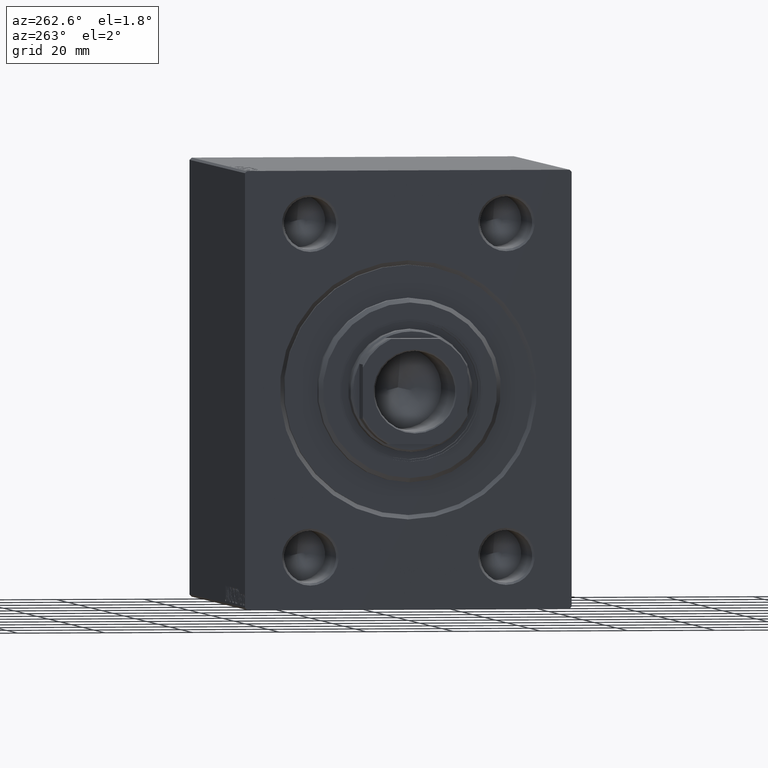
[diagram: clean part render]
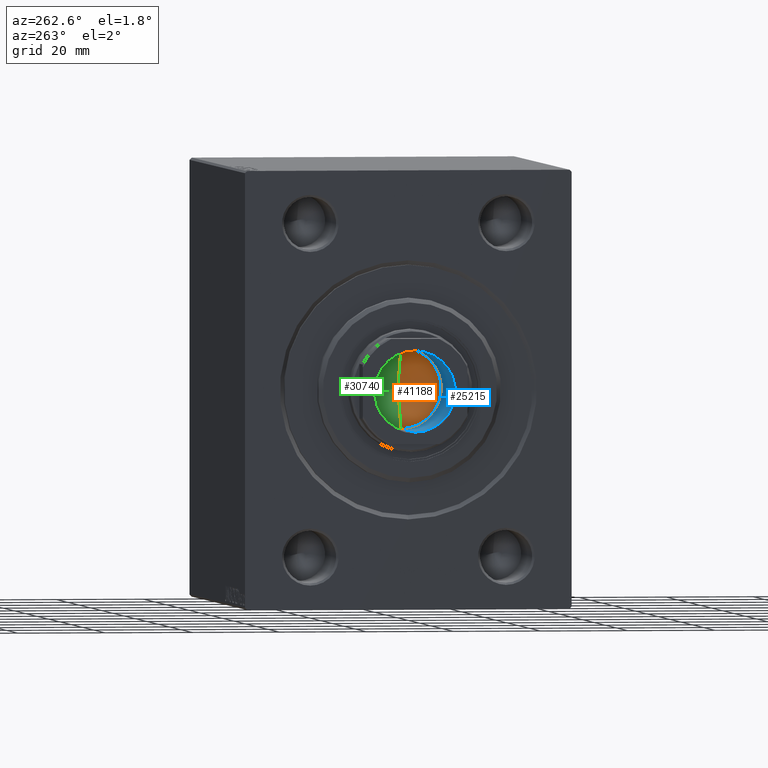
[diagram: same view with three faces highlighted in distinct colors, each labeled with its STEP entity id]
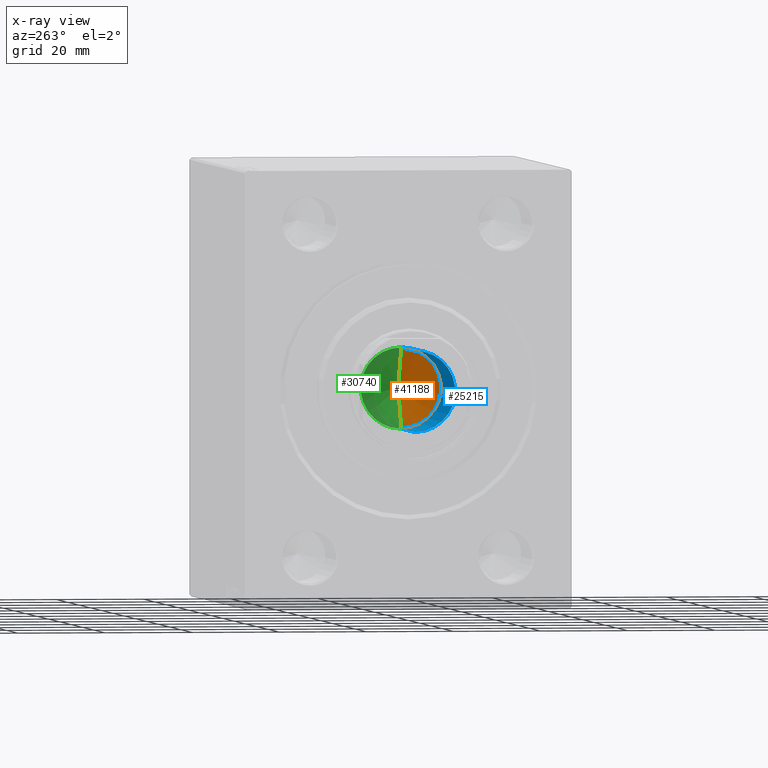
[diagram: x-ray of the same camera — body ghosted, the three highlighted faces saturated]
A machine part, auxiliary view with three faces highlighted in distinct colors.
The next image is the same camera in x-ray (body ghosted, the three faces saturated) — at least one of them is partly hidden behind the body in this view.
Their STEP definitions:

[orange] entity #41188 — the highlighted conical surface has half-angle 59 deg.
#54 = EDGE_CURVE ( 'NONE', #22499, #9112, #35082, .T. ) ;
#546 = CARTESIAN_POINT ( 'NONE',  ( 9.249999999999994671, 0.000000000000000000, 71.00000000000001421 ) ) ;
#1649 = FACE_OUTER_BOUND ( 'NONE', #12194, .T. ) ;
#2955 = AXIS2_PLACEMENT_3D ( 'NONE', #8660, #22164, #39696 ) ;
#3104 = CARTESIAN_POINT ( 'NONE',  ( -6.793016015247754405E-15, 0.000000000000000000, 65.44203927399505005 ) ) ;
#3566 = VECTOR ( 'NONE', #36134, 1000.000000000000000 ) ;
#8614 = DIRECTION ( 'NONE',  ( 1.000000000000000000, 0.000000000000000000, 0.000000000000000000 ) ) ;
#8660 = CARTESIAN_POINT ( 'NONE',  ( 0.000000000000000000, 0.000000000000000000, 71.00000000000001421 ) ) ;
#9112 = VERTEX_POINT ( 'NONE', #546 ) ;
#11833 = CARTESIAN_POINT ( 'NONE',  ( -9.249999999999994671, 1.132798289211300909E-15, 71.00000000000001421 ) ) ;
#12194 = EDGE_LOOP ( 'NONE', ( #38223, #38665, #13730 ) ) ;
#12998 = CIRCLE ( 'NONE', #2955, 9.249999999999994671 ) ;
#13730 = ORIENTED_EDGE ( 'NONE', *, *, #40041, .T. ) ;
#21575 = AXIS2_PLACEMENT_3D ( 'NONE', #39427, #26156, #8614 ) ;
#22122 = VECTOR ( 'NONE', #38437, 1000.000000000000000 ) ;
#22164 = DIRECTION ( 'NONE',  ( -0.000000000000000000, -0.000000000000000000, 1.000000000000000000 ) ) ;
#22423 = LINE ( 'NONE', #11833, #3566 ) ;
#22499 = VERTEX_POINT ( 'NONE', #3104 ) ;
#24727 = CARTESIAN_POINT ( 'NONE',  ( 9.249999999999994671, 0.000000000000000000, 71.00000000000001421 ) ) ;
#26156 = DIRECTION ( 'NONE',  ( -0.000000000000000000, -0.000000000000000000, 1.000000000000000000 ) ) ;
#26877 = CARTESIAN_POINT ( 'NONE',  ( -9.249999999999994671, 1.132798289211300909E-15, 71.00000000000001421 ) ) ;
#28738 = CONICAL_SURFACE ( 'NONE', #21575, 9.249999999999994671, 1.029744258676652535 ) ;
#30457 = VERTEX_POINT ( 'NONE', #26877 ) ;
#35082 = LINE ( 'NONE', #24727, #22122 ) ;
#35461 = EDGE_CURVE ( 'NONE', #22499, #30457, #22423, .T. ) ;
#36134 = DIRECTION ( 'NONE',  ( -0.8571673007021113344, 1.049727191138617463E-16, 0.5150380749100558209 ) ) ;
#38223 = ORIENTED_EDGE ( 'NONE', *, *, #54, .F. ) ;
#38437 = DIRECTION ( 'NONE',  ( 0.8571673007021113344, 0.000000000000000000, 0.5150380749100558209 ) ) ;
#38665 = ORIENTED_EDGE ( 'NONE', *, *, #35461, .T. ) ;
#39427 = CARTESIAN_POINT ( 'NONE',  ( 0.000000000000000000, 0.000000000000000000, 71.00000000000001421 ) ) ;
#39696 = DIRECTION ( 'NONE',  ( 1.000000000000000000, 0.000000000000000000, 0.000000000000000000 ) ) ;
#40041 = EDGE_CURVE ( 'NONE', #30457, #9112, #12998, .T. ) ;
#41188 = ADVANCED_FACE ( 'NONE', ( #1649 ), #28738, .F. ) ;

[blue] entity #25215 — the highlighted cylindrical surface (partial cylindrical patch) has radius 9.25 mm, axis along (-1, 0, 0).
#474 = LINE ( 'NONE', #3638, #43951 ) ;
#546 = CARTESIAN_POINT ( 'NONE',  ( 9.249999999999994671, 0.000000000000000000, 71.00000000000001421 ) ) ;
#1340 = EDGE_CURVE ( 'NONE', #33490, #20099, #22050, .T. ) ;
#1904 = AXIS2_PLACEMENT_3D ( 'NONE', #4705, #28768, #22015 ) ;
#2955 = AXIS2_PLACEMENT_3D ( 'NONE', #8660, #22164, #39696 ) ;
#3638 = CARTESIAN_POINT ( 'NONE',  ( 9.249999999999994671, 0.000000000000000000, 96.00000000000000000 ) ) ;
#4705 = CARTESIAN_POINT ( 'NONE',  ( 0.000000000000000000, 0.000000000000000000, 96.00000000000000000 ) ) ;
#5731 = DIRECTION ( 'NONE',  ( 1.000000000000000000, 0.000000000000000000, 0.000000000000000000 ) ) ;
#6563 = DIRECTION ( 'NONE',  ( -0.000000000000000000, -0.000000000000000000, 1.000000000000000000 ) ) ;
#8660 = CARTESIAN_POINT ( 'NONE',  ( 0.000000000000000000, 0.000000000000000000, 71.00000000000001421 ) ) ;
#9112 = VERTEX_POINT ( 'NONE', #546 ) ;
#10402 = EDGE_CURVE ( 'NONE', #30457, #33490, #29566, .T. ) ;
#11008 = ORIENTED_EDGE ( 'NONE', *, *, #43213, .F. ) ;
#12998 = CIRCLE ( 'NONE', #2955, 9.249999999999994671 ) ;
#15483 = FACE_OUTER_BOUND ( 'NONE', #33390, .T. ) ;
#16277 = DIRECTION ( 'NONE',  ( 0.000000000000000000, 0.000000000000000000, 1.000000000000000000 ) ) ;
#19075 = ORIENTED_EDGE ( 'NONE', *, *, #1340, .T. ) ;
#20099 = VERTEX_POINT ( 'NONE', #25489 ) ;
#22015 = DIRECTION ( 'NONE',  ( 1.000000000000000000, 0.000000000000000000, 0.000000000000000000 ) ) ;
#22050 = CIRCLE ( 'NONE', #27788, 9.249999999999994671 ) ;
#22164 = DIRECTION ( 'NONE',  ( -0.000000000000000000, -0.000000000000000000, 1.000000000000000000 ) ) ;
#25215 = ADVANCED_FACE ( 'NONE', ( #15483 ), #39098, .F. ) ;
#25489 = CARTESIAN_POINT ( 'NONE',  ( 9.249999999999994671, 0.000000000000000000, 95.70000000000000284 ) ) ;
#25511 = DIRECTION ( 'NONE',  ( -0.000000000000000000, -0.000000000000000000, 1.000000000000000000 ) ) ;
#26354 = ORIENTED_EDGE ( 'NONE', *, *, #10402, .T. ) ;
#26877 = CARTESIAN_POINT ( 'NONE',  ( -9.249999999999994671, 1.132798289211300909E-15, 71.00000000000001421 ) ) ;
#27788 = AXIS2_PLACEMENT_3D ( 'NONE', #36530, #16277, #5731 ) ;
#28768 = DIRECTION ( 'NONE',  ( -0.000000000000000000, -0.000000000000000000, 1.000000000000000000 ) ) ;
#29566 = LINE ( 'NONE', #38775, #36028 ) ;
#30457 = VERTEX_POINT ( 'NONE', #26877 ) ;
#32095 = CARTESIAN_POINT ( 'NONE',  ( -9.249999999999994671, 1.132798289211300909E-15, 95.70000000000000284 ) ) ;
#33390 = EDGE_LOOP ( 'NONE', ( #39181, #26354, #19075, #11008 ) ) ;
#33490 = VERTEX_POINT ( 'NONE', #32095 ) ;
#36028 = VECTOR ( 'NONE', #25511, 1000.000000000000000 ) ;
#36530 = CARTESIAN_POINT ( 'NONE',  ( 0.000000000000000000, 0.000000000000000000, 95.70000000000000284 ) ) ;
#38775 = CARTESIAN_POINT ( 'NONE',  ( -9.249999999999994671, 1.132798289211300909E-15, 96.00000000000000000 ) ) ;
#39098 = CYLINDRICAL_SURFACE ( 'NONE', #1904, 9.249999999999994671 ) ;
#39181 = ORIENTED_EDGE ( 'NONE', *, *, #40041, .F. ) ;
#39696 = DIRECTION ( 'NONE',  ( 1.000000000000000000, 0.000000000000000000, 0.000000000000000000 ) ) ;
#40041 = EDGE_CURVE ( 'NONE', #30457, #9112, #12998, .T. ) ;
#43213 = EDGE_CURVE ( 'NONE', #9112, #20099, #474, .T. ) ;
#43951 = VECTOR ( 'NONE', #6563, 1000.000000000000000 ) ;

[green] entity #30740 — the highlighted conical surface has half-angle 59 deg.
#54 = EDGE_CURVE ( 'NONE', #22499, #9112, #35082, .T. ) ;
#546 = CARTESIAN_POINT ( 'NONE',  ( 9.249999999999994671, 0.000000000000000000, 71.00000000000001421 ) ) ;
#3104 = CARTESIAN_POINT ( 'NONE',  ( -6.793016015247754405E-15, 0.000000000000000000, 65.44203927399505005 ) ) ;
#3566 = VECTOR ( 'NONE', #36134, 1000.000000000000000 ) ;
#6550 = EDGE_LOOP ( 'NONE', ( #24039, #39190, #37301 ) ) ;
#7247 = CARTESIAN_POINT ( 'NONE',  ( 0.000000000000000000, 0.000000000000000000, 71.00000000000001421 ) ) ;
#9112 = VERTEX_POINT ( 'NONE', #546 ) ;
#11833 = CARTESIAN_POINT ( 'NONE',  ( -9.249999999999994671, 1.132798289211300909E-15, 71.00000000000001421 ) ) ;
#13507 = AXIS2_PLACEMENT_3D ( 'NONE', #16471, #30863, #37591 ) ;
#13538 = DIRECTION ( 'NONE',  ( -0.000000000000000000, -0.000000000000000000, 1.000000000000000000 ) ) ;
#16471 = CARTESIAN_POINT ( 'NONE',  ( 0.000000000000000000, 0.000000000000000000, 71.00000000000001421 ) ) ;
#20992 = EDGE_CURVE ( 'NONE', #9112, #30457, #39946, .T. ) ;
#22122 = VECTOR ( 'NONE', #38437, 1000.000000000000000 ) ;
#22423 = LINE ( 'NONE', #11833, #3566 ) ;
#22499 = VERTEX_POINT ( 'NONE', #3104 ) ;
#24039 = ORIENTED_EDGE ( 'NONE', *, *, #35461, .F. ) ;
#24727 = CARTESIAN_POINT ( 'NONE',  ( 9.249999999999994671, 0.000000000000000000, 71.00000000000001421 ) ) ;
#26282 = AXIS2_PLACEMENT_3D ( 'NONE', #7247, #13538, #38265 ) ;
#26877 = CARTESIAN_POINT ( 'NONE',  ( -9.249999999999994671, 1.132798289211300909E-15, 71.00000000000001421 ) ) ;
#27044 = FACE_OUTER_BOUND ( 'NONE', #6550, .T. ) ;
#30457 = VERTEX_POINT ( 'NONE', #26877 ) ;
#30740 = ADVANCED_FACE ( 'NONE', ( #27044 ), #43656, .F. ) ;
#30863 = DIRECTION ( 'NONE',  ( -0.000000000000000000, -0.000000000000000000, 1.000000000000000000 ) ) ;
#35082 = LINE ( 'NONE', #24727, #22122 ) ;
#35461 = EDGE_CURVE ( 'NONE', #22499, #30457, #22423, .T. ) ;
#36134 = DIRECTION ( 'NONE',  ( -0.8571673007021113344, 1.049727191138617463E-16, 0.5150380749100558209 ) ) ;
#37301 = ORIENTED_EDGE ( 'NONE', *, *, #20992, .T. ) ;
#37591 = DIRECTION ( 'NONE',  ( 1.000000000000000000, 0.000000000000000000, 0.000000000000000000 ) ) ;
#38265 = DIRECTION ( 'NONE',  ( 1.000000000000000000, 0.000000000000000000, 0.000000000000000000 ) ) ;
#38437 = DIRECTION ( 'NONE',  ( 0.8571673007021113344, 0.000000000000000000, 0.5150380749100558209 ) ) ;
#39190 = ORIENTED_EDGE ( 'NONE', *, *, #54, .T. ) ;
#39946 = CIRCLE ( 'NONE', #26282, 9.249999999999994671 ) ;
#43656 = CONICAL_SURFACE ( 'NONE', #13507, 9.249999999999994671, 1.029744258676652535 ) ;